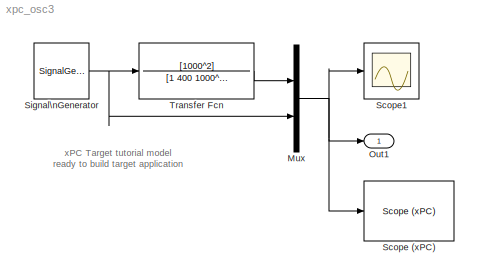
MODEL xpc_osc3
KIND model
CONFIG AbsTol = auto
CONFIG FixedStep = 0.000250
CONFIG MaxStep = auto
CONFIG MinStep = auto
CONFIG RelTol = 1e-3
CONFIG Solver = ode4
CONFIG SolverMode = Auto
CONFIG StartTime = 0.0
CONFIG StopTime = 20
BLOCK [Mux] Mux
  DisplayOption = bar
  Inputs = 2
  Ports = [2, 1]
BLOCK [Outport] Out1
BLOCK [Reference] Scope (xPC)   REF=xpclib/Misc./Scope (xPC) 
  Ports = [1]
  SourceBlock = xpclib/Misc./Scope (xPC)
  SourceType = xpcscopeblock
  autostart = on
  grid = on
  interleave = 1
  noprepostsamples = 0
  nosamples = 500
  scopeno = 1
  scopetype = Target
  triggerlevel = 0.0
  triggermode = Signal Triggering
  triggerscope = 1
  triggersignal = 1
  triggerslope = rising
  viewmode = Graphical redraw
  ylimits = [0,0]
BLOCK [Scope] Scope1
  DataFormat = StructureWithTime
  Decimation = 2
  ExtModeUploadOption = log
  LimitDataPoints = off
  NumInputPorts = 1
  Ports = [1]
  SampleInput = on
  SaveName = ScopeData1
  TickLabels = on
  TimeRange = 0.2
  YMax = 10
  YMin = -10
  ZoomMode = xonly
BLOCK [SignalGenerator] Signal\nGenerator
  Amplitude = 4
  Frequency = 20
  WaveForm = square
BLOCK [TransferFcn] Transfer Fcn
  Denominator = [1  400 1000^2]
  Numerator = [1000^2]
ANNOTATION (root): xPC Target tutorial model \nready to build target application
NET Mux:1 -> Out1:1, Scope (xPC) :1, Scope1:1
NET Signal\nGenerator:1 -> Mux:2, Transfer Fcn:1
LINE Transfer Fcn:1 -> Mux:1
note: NET lines group one-source signal fan-out (src -> all destinations, sorted); 1:1 wires keep LINE
